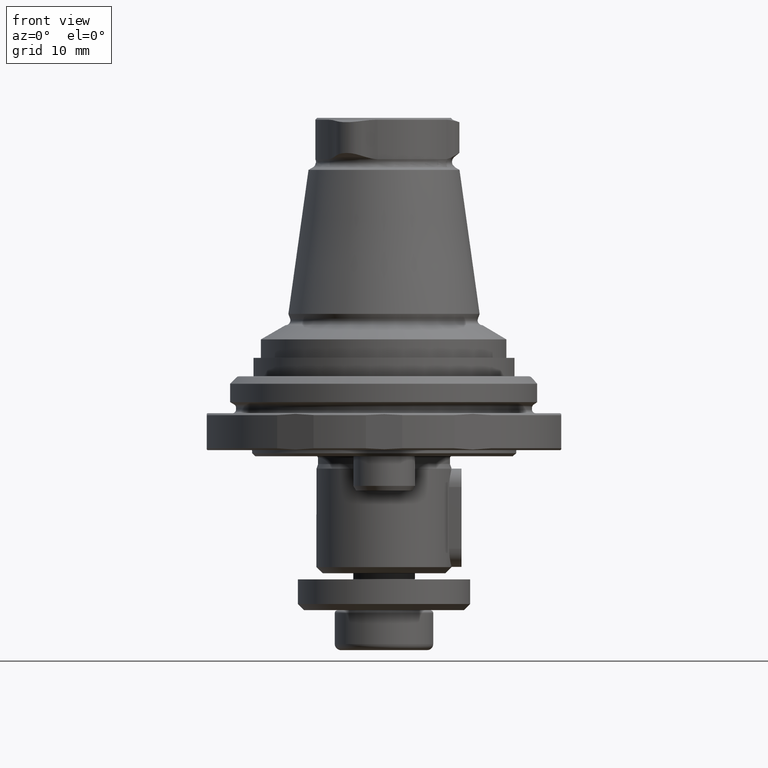
[diagram: clean part render]
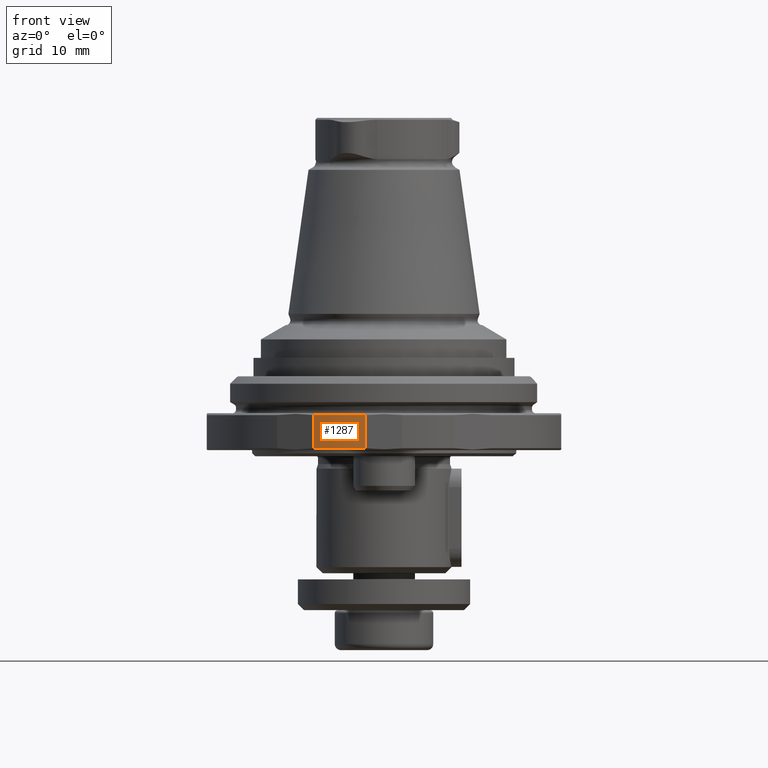
[diagram: same view with one face highlighted and labeled with its STEP entity id]
A machine part, front view. The second image highlights one B-rep face of the part: STEP entity #1287.
In plain terms, the highlighted cylindrical surface (partial cylindrical patch) has radius 29 mm, axis along (0, 0, -1).
Its self-contained STEP definition (entity closure, byte-faithful):
#94=LINE('',#2333,#135);
#95=LINE('',#2337,#136);
#135=VECTOR('',#1810,1000.);
#136=VECTOR('',#1815,1000.);
#460=ORIENTED_EDGE('',*,*,#679,.F.);
#461=ORIENTED_EDGE('',*,*,#680,.T.);
#462=ORIENTED_EDGE('',*,*,#660,.T.);
#463=ORIENTED_EDGE('',*,*,#678,.T.);
#660=EDGE_CURVE('',#800,#799,#892,.T.);
#678=EDGE_CURVE('',#799,#812,#94,.T.);
#679=EDGE_CURVE('',#813,#812,#898,.T.);
#680=EDGE_CURVE('',#813,#800,#95,.F.);
#799=VERTEX_POINT('',#2275);
#800=VERTEX_POINT('',#2277);
#812=VERTEX_POINT('',#2332);
#813=VERTEX_POINT('',#2336);
#892=CIRCLE('',#1451,29.);
#898=CIRCLE('',#1463,29.);
#1019=EDGE_LOOP('',(#460,#461,#462,#463));
#1154=FACE_BOUND('',#1019,.T.);
#1208=CYLINDRICAL_SURFACE('',#1462,29.);
#1287=ADVANCED_FACE('',(#1154),#1208,.T.);
#1451=AXIS2_PLACEMENT_3D('',#2276,#1783,#1784);
#1462=AXIS2_PLACEMENT_3D('',#2334,#1811,#1812);
#1463=AXIS2_PLACEMENT_3D('',#2335,#1813,#1814);
#1783=DIRECTION('',(1.22464605849178E-16,1.04225259501902E-17,-1.));
#1784=DIRECTION('',(-1.,-5.54667823983524E-32,-1.22464605849178E-16));
#1810=DIRECTION('',(1.22464605849178E-16,1.04225259501902E-17,-1.));
#1811=DIRECTION('',(1.22464605849178E-16,1.04225259501902E-17,-1.));
#1812=DIRECTION('',(-1.,-5.54667823983524E-32,-1.22464605849178E-16));
#1813=DIRECTION('',(1.22464605849178E-16,1.04225259501902E-17,-1.));
#1814=DIRECTION('',(-1.,-5.54667823983524E-32,-1.22464605849178E-16));
#1815=DIRECTION('',(1.22464605849178E-16,1.04225259501902E-17,-1.));
#2275=CARTESIAN_POINT('',(-11.4555136271329,-26.6415316289918,-1.30000000000002));
#2276=CARTESIAN_POINT('',(5.53668419773026E-15,9.692949133677E-17,-1.30000000000002));
#2277=CARTESIAN_POINT('',(-2.94575966433106,-28.85,-1.30000000000002));
#2332=CARTESIAN_POINT('',(-11.4555136271329,-26.6415316289918,-6.70000000000002));
#2333=CARTESIAN_POINT('',(-11.4555136271329,-26.6415316289918,-1.00000000000002));
#2334=CARTESIAN_POINT('',(5.4999448159755E-15,9.38027335517129E-17,-1.00000000000002));
#2335=CARTESIAN_POINT('',(6.19799306931582E-15,1.53211131467797E-16,-6.70000000000002));
#2336=CARTESIAN_POINT('',(-2.94575966433106,-28.85,-6.70000000000002));
#2337=CARTESIAN_POINT('',(-2.94575966433106,-28.85,-1.00000000000002));